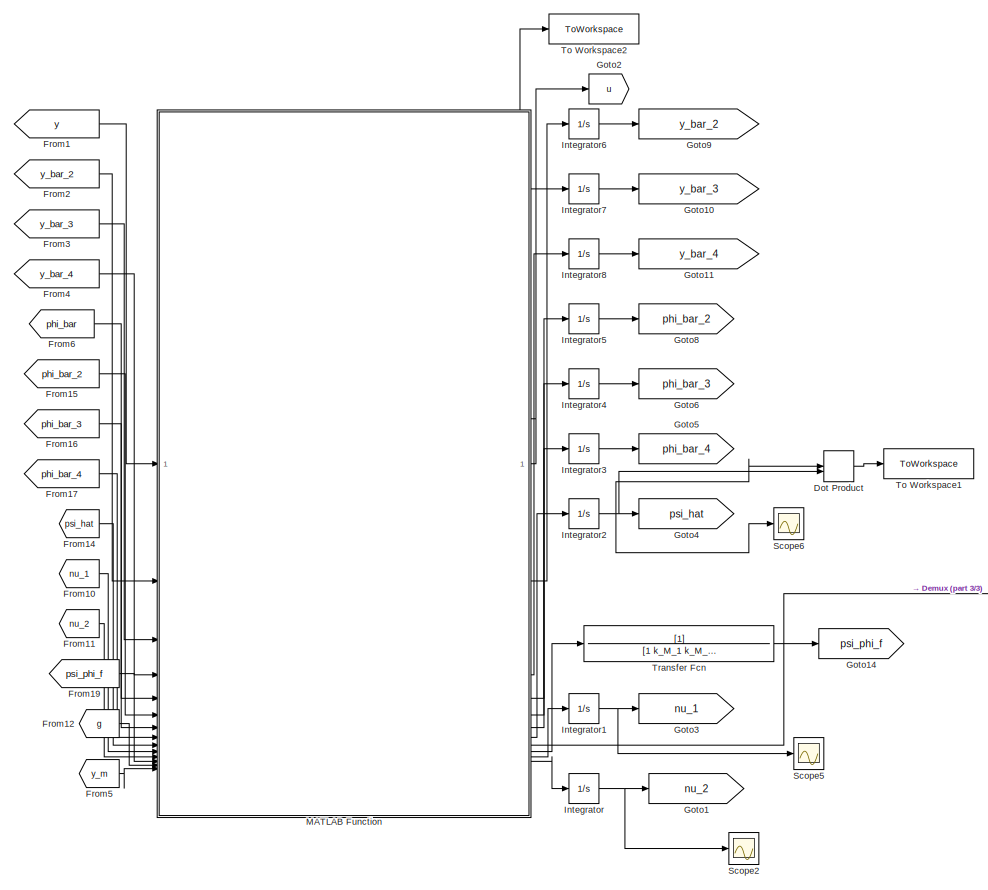
[diagram: root canvas - part 1/3, center side, full height]
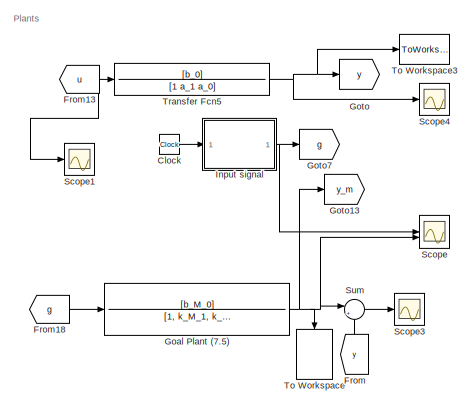
[diagram: root canvas - part 2/3, middle left region]
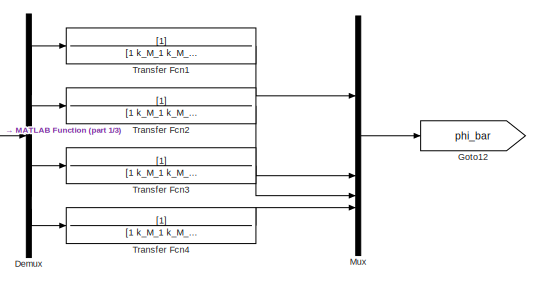
[diagram: root canvas - part 3/3, bottom right region]
MODEL slx_7cd6665e41a0
KIND model
CONFIG AbsTol = auto
CONFIG EnableMultiTasking = off
CONFIG FixedStep = auto
CONFIG MaxStep = auto
CONFIG MinStep = auto
CONFIG RelTol = 1e-3
CONFIG SampleTimeConstraint = Unconstrained
CONFIG SolverName = VariableStepAuto
CONFIG StartTime = 0.0
CONFIG StopTime = 100
BLOCK [Clock] Clock
BLOCK [Demux] Demux
BLOCK [DotProduct] Dot Product
  OutDataTypeStr = Inherit: Inherit via internal rule
BLOCK [From] From
  GotoTag = y
  NameLocation = right
BLOCK [From] From1
  GotoTag = y
BLOCK [From] From10
  GotoTag = nu_1
BLOCK [From] From11
  GotoTag = nu_2
BLOCK [From] From12
  GotoTag = g
BLOCK [From] From13
  GotoTag = u
BLOCK [From] From14
  GotoTag = psi_hat
BLOCK [From] From15
  GotoTag = phi_bar_2
BLOCK [From] From16
  GotoTag = phi_bar_3
BLOCK [From] From17
  GotoTag = phi_bar_4
BLOCK [From] From18
  GotoTag = g
BLOCK [From] From19
  GotoTag = psi_phi_f
BLOCK [From] From2
  GotoTag = y_bar_2
BLOCK [From] From3
  GotoTag = y_bar_3
BLOCK [From] From4
  GotoTag = y_bar_4
BLOCK [From] From5
  GotoTag = y_m
BLOCK [From] From6
  GotoTag = phi_bar
BLOCK [TransferFcn] Goal Plant (7.5)
  Denominator = [1, k_M_1, k_M_0]
  Numerator = [b_M_0]
BLOCK [Goto] Goto
  GotoTag = y
BLOCK [Goto] Goto1
  GotoTag = nu_2
BLOCK [Goto] Goto10
  GotoTag = y_bar_3
BLOCK [Goto] Goto11
  GotoTag = y_bar_4
BLOCK [Goto] Goto12
  GotoTag = phi_bar
BLOCK [Goto] Goto13
  GotoTag = y_m
BLOCK [Goto] Goto14
  GotoTag = psi_phi_f
BLOCK [Goto] Goto2
  GotoTag = u
BLOCK [Goto] Goto3
  GotoTag = nu_1
BLOCK [Goto] Goto4
  GotoTag = psi_hat
BLOCK [Goto] Goto5
  GotoTag = phi_bar_4
BLOCK [Goto] Goto6
  GotoTag = phi_bar_3
BLOCK [Goto] Goto7
  GotoTag = g
BLOCK [Goto] Goto8
  GotoTag = phi_bar_2
BLOCK [Goto] Goto9
  GotoTag = y_bar_2
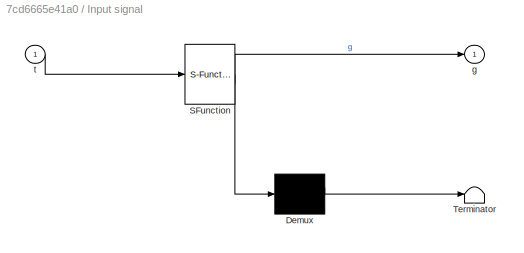
BLOCK [SubSystem] Input signal
  ErrorFcn = Stateflow.Translate.translate
  PermitHierarchicalResolution = ExplicitOnly
  SFBlockType = MATLAB Function
  TreatAsAtomicUnit = on
BLOCK [Demux] Input signal/ Demux 
  Outputs = 1
BLOCK [S-Function] Input signal/ SFunction 
  EnableBusSupport = on
  FunctionName = sf_sfun
  PortCounts = [1 2]
  SFcnIsStateOwnerBlock = off
  SFunctionDeploymentMode = off
  Tag = Stateflow S-Function 8
BLOCK [Terminator] Input signal/ Terminator 
BLOCK [Outport] Input signal/g
BLOCK [Inport] Input signal/t
BLOCK [Integrator] Integrator
BLOCK [Integrator] Integrator1
BLOCK [Integrator] Integrator2
  InitialCondition = [0; 0; 0; 1]
BLOCK [Integrator] Integrator3
  InitialCondition = [0; 0; 0; 0]
BLOCK [Integrator] Integrator4
  InitialCondition = [0; 0; 0; 0]
BLOCK [Integrator] Integrator5
  InitialCondition = [0; 0; 0; 0]
BLOCK [Integrator] Integrator6
BLOCK [Integrator] Integrator7
BLOCK [Integrator] Integrator8
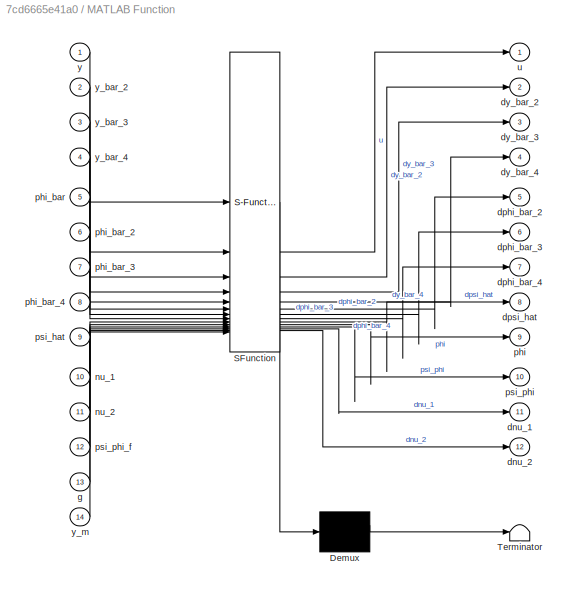
BLOCK [SubSystem] MATLAB Function
  ErrorFcn = Stateflow.Translate.translate
  PermitHierarchicalResolution = ExplicitOnly
  SFBlockType = MATLAB Function
  TreatAsAtomicUnit = on
BLOCK [Demux] MATLAB Function/ Demux 
  Outputs = 1
BLOCK [S-Function] MATLAB Function/ SFunction 
  EnableBusSupport = on
  FunctionName = sf_sfun
  Parameters = Lambda,b_M_0,gamma_0,mu_1,mu_2,mu_3
  PortCounts = [14 13]
  SFcnIsStateOwnerBlock = off
  SFunctionDeploymentMode = off
  Tag = Stateflow S-Function 2
BLOCK [Terminator] MATLAB Function/ Terminator 
BLOCK [Outport] MATLAB Function/dnu_1
  Port = 11
BLOCK [Outport] MATLAB Function/dnu_2
  Port = 12
BLOCK [Outport] MATLAB Function/dphi_bar_2
  Port = 5
BLOCK [Outport] MATLAB Function/dphi_bar_3
  Port = 6
BLOCK [Outport] MATLAB Function/dphi_bar_4
  Port = 7
BLOCK [Outport] MATLAB Function/dpsi_hat
  Port = 8
BLOCK [Outport] MATLAB Function/dy_bar_2
  Port = 2
BLOCK [Outport] MATLAB Function/dy_bar_3
  Port = 3
BLOCK [Outport] MATLAB Function/dy_bar_4
  Port = 4
BLOCK [Inport] MATLAB Function/g
  Port = 13
BLOCK [Inport] MATLAB Function/nu_1
  Port = 10
BLOCK [Inport] MATLAB Function/nu_2
  Port = 11
BLOCK [Outport] MATLAB Function/phi
  Port = 9
BLOCK [Inport] MATLAB Function/phi_bar
  Port = 5
BLOCK [Inport] MATLAB Function/phi_bar_2
  Port = 6
BLOCK [Inport] MATLAB Function/phi_bar_3
  Port = 7
BLOCK [Inport] MATLAB Function/phi_bar_4
  Port = 8
BLOCK [Inport] MATLAB Function/psi_hat
  Port = 9
BLOCK [Outport] MATLAB Function/psi_phi
  Port = 10
BLOCK [Inport] MATLAB Function/psi_phi_f
  Port = 12
BLOCK [Outport] MATLAB Function/u
BLOCK [Inport] MATLAB Function/y
BLOCK [Inport] MATLAB Function/y_bar_2
  Port = 2
BLOCK [Inport] MATLAB Function/y_bar_3
  Port = 3
BLOCK [Inport] MATLAB Function/y_bar_4
  Port = 4
BLOCK [Inport] MATLAB Function/y_m
  Port = 14
BLOCK [Mux] Mux
  DisplayOption = bar
BLOCK [Scope] Scope
  Floating = off
  NumInputPorts = 2
  ScopeSpecificationString = Simulink.scopes.TimeScopeBlockCfg('CurrentConfiguration', extmgr.ConfigurationSet(extmgr.Configuration('Core','General UI',true),extmgr.Configuration('Core','Source UI',true),extmgr.Configuration('Sources','WiredSimulink',true,'DataLoggingVariableName','ScopeData1'),extmgr.Configuration('Visuals','Time Domain',true,'SerializedDisplays',{struct('MinYLimReal','-1.85725','MaxYLimReal','16.71522','YLa...<+1483ch>
BLOCK [Scope] Scope1
  Floating = off
  NumInputPorts = 1
  ScopeSpecificationString = Simulink.scopes.TimeScopeBlockCfg('CurrentConfiguration', extmgr.ConfigurationSet(extmgr.Configuration('Core','General UI',true),extmgr.Configuration('Core','Source UI',true),extmgr.Configuration('Sources','WiredSimulink',true,'DataLoggingVariableName','ScopeData2'),extmgr.Configuration('Visuals','Time Domain',true,'SerializedDisplays',{struct('MinYLimReal','-8.62168','MaxYLimReal','4.67223','YLab...<+1786ch>
BLOCK [Scope] Scope2
  Floating = off
  NumInputPorts = 1
  ScopeSpecificationString = Simulink.scopes.TimeScopeBlockCfg('CurrentConfiguration', extmgr.ConfigurationSet(extmgr.Configuration('Core','General UI',true),extmgr.Configuration('Core','Source UI',true),extmgr.Configuration('Sources','WiredSimulink',true,'DataLoggingVariableName','ScopeData3'),extmgr.Configuration('Visuals','Time Domain',true,'SerializedDisplays',{struct('MinYLimReal','-3.01963','MaxYLimReal','2.55774','YLab...<+1458ch>
BLOCK [Scope] Scope3
  Floating = off
  NumInputPorts = 1
  ScopeSpecificationString = Simulink.scopes.TimeScopeBlockCfg('CurrentConfiguration', extmgr.ConfigurationSet(extmgr.Configuration('Core','General UI',true),extmgr.Configuration('Core','Source UI',true),extmgr.Configuration('Sources','WiredSimulink',true,'DataLoggingVariableName','ScopeData3'),extmgr.Configuration('Visuals','Time Domain',true,'SerializedDisplays',{struct('MinYLimReal','-2.00665','MaxYLimReal','0.33091','YLab...<+1499ch>
BLOCK [Scope] Scope4
  Floating = off
  NumInputPorts = 1
  ScopeSpecificationString = Simulink.scopes.TimeScopeBlockCfg('CurrentConfiguration', extmgr.ConfigurationSet(extmgr.Configuration('Core','General UI',true),extmgr.Configuration('Core','Source UI',true),extmgr.Configuration('Sources','WiredSimulink',true,'DataLoggingVariableName','ScopeData4'),extmgr.Configuration('Visuals','Time Domain',true,'SerializedDisplays',{struct('MinYLimReal','-0.30191','MaxYLimReal','2.71716','YLab...<+1515ch>
BLOCK [Scope] Scope5
  Floating = off
  NumInputPorts = 1
  ScopeSpecificationString = Simulink.scopes.TimeScopeBlockCfg('CurrentConfiguration', extmgr.ConfigurationSet(extmgr.Configuration('Core','General UI',true),extmgr.Configuration('Core','Source UI',true),extmgr.Configuration('Sources','WiredSimulink',true,'DataLoggingVariableName','ScopeData4'),extmgr.Configuration('Visuals','Time Domain',true,'SerializedDisplays',{struct('MinYLimReal','0.169','MaxYLimReal','1.09233','YLabelR...<+1449ch>
BLOCK [Scope] Scope6
  Floating = off
  NumInputPorts = 1
  ScopeSpecificationString = Simulink.scopes.TimeScopeBlockCfg('CurrentConfiguration', extmgr.ConfigurationSet(extmgr.Configuration('Core','General UI',true),extmgr.Configuration('Core','Source UI',true),extmgr.Configuration('Sources','WiredSimulink',true,'DataLoggingVariableName','ScopeData5'),extmgr.Configuration('Visuals','Time Domain',true,'SerializedDisplays',{struct('MinYLimReal','-5.72273','MaxYLimReal','17.06384','YLa...<+1513ch>
BLOCK [Sum] Sum
  Inputs = |+-
BLOCK [ToWorkspace] To Workspace
  FixptAsFi = on
  MaxDataPoints = inf
  NameLocation = left
  SampleTime = -1
  SaveFormat = Timeseries
  VariableName = y_m
BLOCK [ToWorkspace] To Workspace1
  FixptAsFi = on
  MaxDataPoints = inf
  SampleTime = -1
  SaveFormat = Timeseries
  VariableName = psi_p_norm
BLOCK [ToWorkspace] To Workspace2
  FixptAsFi = on
  MaxDataPoints = inf
  SampleTime = -1
  SaveFormat = Timeseries
  VariableName = u
BLOCK [ToWorkspace] To Workspace3
  FixptAsFi = on
  MaxDataPoints = inf
  SampleTime = -1
  SaveFormat = Timeseries
  VariableName = y
BLOCK [TransferFcn] Transfer Fcn
  Denominator = [1 k_M_1 k_M_0]
BLOCK [TransferFcn] Transfer Fcn1
  Denominator = [1 k_M_1 k_M_0]
BLOCK [TransferFcn] Transfer Fcn2
  Denominator = [1 k_M_1 k_M_0]
BLOCK [TransferFcn] Transfer Fcn3
  Denominator = [1 k_M_1 k_M_0]
BLOCK [TransferFcn] Transfer Fcn4
  Denominator = [1 k_M_1 k_M_0]
BLOCK [TransferFcn] Transfer Fcn5
  Denominator = [1 a_1 a_0]
  Numerator = [b_0]
ANNOTATION (root): Plants
LINE Clock:1 -> Input signal:1
LINE Demux:1 -> Transfer Fcn1:1
LINE Demux:2 -> Transfer Fcn2:1
LINE Demux:3 -> Transfer Fcn3:1
LINE Demux:4 -> Transfer Fcn4:1
LINE Dot Product:1 -> To Workspace1:1
LINE From10:1 -> MATLAB Function:10
LINE From11:1 -> MATLAB Function:11
LINE From12:1 -> MATLAB Function:13
NET From13:1 -> Scope1:1, Transfer Fcn5:1
LINE From14:1 -> MATLAB Function:9
LINE From15:1 -> MATLAB Function:6
LINE From16:1 -> MATLAB Function:7
LINE From17:1 -> MATLAB Function:8
LINE From18:1 -> Goal Plant (7.5):1
LINE From19:1 -> MATLAB Function:12
LINE From1:1 -> MATLAB Function:1
LINE From2:1 -> MATLAB Function:2
LINE From3:1 -> MATLAB Function:3
LINE From4:1 -> MATLAB Function:4
LINE From5:1 -> MATLAB Function:14
LINE From6:1 -> MATLAB Function:5
LINE From:1 -> Sum:2
NET Goal Plant (7.5):1 -> Goto13:1, Scope:2, Sum:1, To Workspace:1
NET Input signal:1 -> Goto7:1, Scope:1
NET Integrator1:1 -> Goto3:1, Scope5:1
NET Integrator2:1 -> Dot Product:1, Dot Product:2, Goto4:1, Scope6:1
LINE Integrator3:1 -> Goto5:1
LINE Integrator4:1 -> Goto6:1
LINE Integrator5:1 -> Goto8:1
LINE Integrator6:1 -> Goto9:1
LINE Integrator7:1 -> Goto10:1
LINE Integrator8:1 -> Goto11:1
NET Integrator:1 -> Goto1:1, Scope2:1
NET MATLAB Function:1 -> Goto2:1, To Workspace2:1
LINE MATLAB Function:10 -> Transfer Fcn:1
LINE MATLAB Function:11 -> Integrator1:1
LINE MATLAB Function:12 -> Integrator:1
LINE MATLAB Function:2 -> Integrator6:1
LINE MATLAB Function:3 -> Integrator7:1
LINE MATLAB Function:4 -> Integrator8:1
LINE MATLAB Function:5 -> Integrator5:1
LINE MATLAB Function:6 -> Integrator4:1
LINE MATLAB Function:7 -> Integrator3:1
LINE MATLAB Function:8 -> Integrator2:1
LINE MATLAB Function:9 -> Demux:1
LINE Mux:1 -> Goto12:1
LINE Sum:1 -> Scope3:1
LINE Transfer Fcn1:1 -> Mux:1
LINE Transfer Fcn2:1 -> Mux:2
LINE Transfer Fcn3:1 -> Mux:3
LINE Transfer Fcn4:1 -> Mux:4
NET Transfer Fcn5:1 -> Goto:1, Scope4:1, To Workspace3:1
LINE Transfer Fcn:1 -> Goto14:1
note: NET lines group one-source signal fan-out (src -> all destinations, sorted); 1:1 wires keep LINE
CHART MATLAB Function states=1 transitions=1
  STATE_LABEL 'eML_blk_kernel()'
  STATE_LABEL "SCRIPT:\nfunction [u, dy_bar_2, dy_bar_3, dy_bar_4, dphi_bar_2, dphi_bar_3, dphi_bar_4, dpsi_hat, phi, psi_phi, dnu_1, dnu_2]  = fcn(y, y_bar_2, y_bar_3, y_bar_4, phi_bar, phi_bar_2, phi_bar_3, phi_bar_4, psi_hat, nu_1, nu_2, psi_phi_f, g, y_m, mu_1, mu_2, mu_3, gamma_0, b_M_0, Lambda)\n\ntheta_hat = psi_hat(1:3);\nb_0_hat = psi_hat(4);\nepsilon = y_m - y;\nepsilon_hat = epsilon - psi_hat' * phi_bar + p...<+679ch>"
CHART Input signal states=1 transitions=1
  STATE_LABEL 'eML_blk_kernel()'
  STATE_LABEL 'SCRIPT:\nfunction g = fcn(t)\n\ng = 7 * cos(3 * t + 2);\n\n'
CHART  states=0 transitions=0
CHART  states=0 transitions=0
